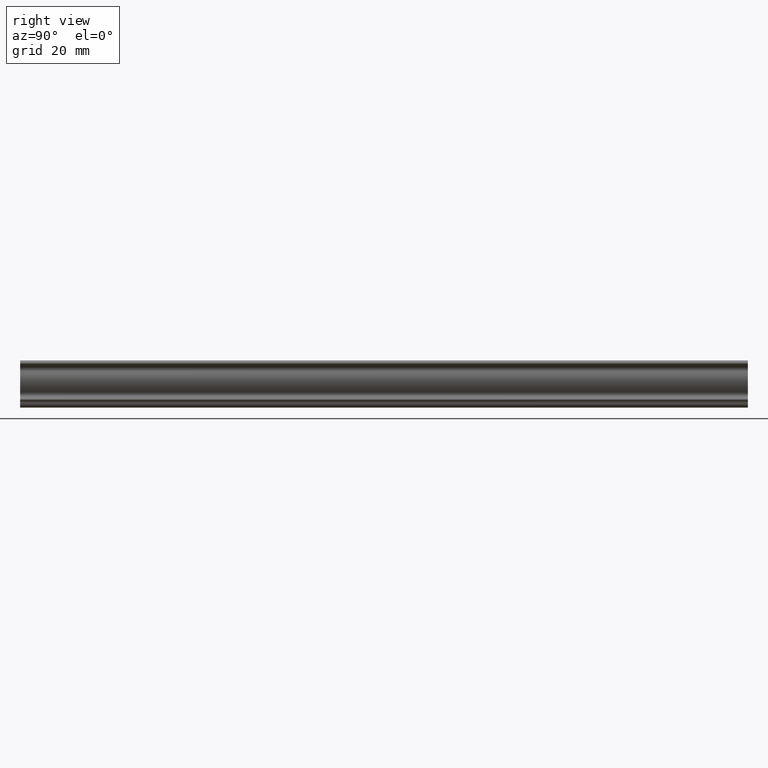
[diagram: clean part render]
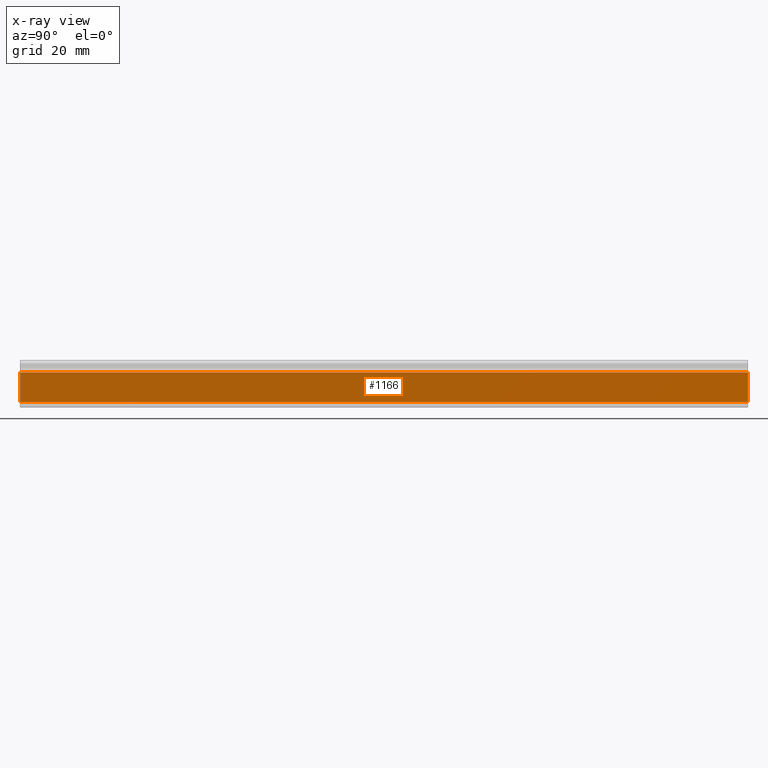
[diagram: x-ray — body ghosted, one internal face saturated and labeled with its STEP entity id]
A machine part, right view, then the same camera in x-ray: the body is ghosted and one INTERNAL B-rep face — a face not visible from any outside direction — is saturated and labeled: STEP entity #1166.
In plain terms, the highlighted face is a freeform B-spline surface patch.
Its self-contained STEP definition (entity closure, byte-faithful):
#1100=CARTESIAN_POINT('',(-3.400185990623070,0.0,-3.307314311838425));
#1101=VERTEX_POINT('',#1100);
#1116=CARTESIAN_POINT('',(-3.400185990623070,200.0,-3.307314311838425));
#1117=VERTEX_POINT('',#1116);
#1131=CARTESIAN_POINT('',(-3.400185990623070,200.0,-3.307314311838425));
#1132=CARTESIAN_POINT('',(-3.400185990623070,0.0,-3.307314311838425));
#1133=QUASI_UNIFORM_CURVE('',1,(#1131,#1132),.UNSPECIFIED.,.F.,.U.);
#1134=EDGE_CURVE('',#1117,#1101,#1133,.T.);
#1139=CARTESIAN_POINT('',(-3.425160984960332,-9.989999612361194,-2.898394259120184));
#1140=CARTESIAN_POINT('',(-2.875210978404415,-9.989999612361194,-11.902824155535820));
#1141=CARTESIAN_POINT('',(-3.425160984960332,209.990004976779200,-2.898394259120184));
#1142=CARTESIAN_POINT('',(-2.875210978404415,209.990004976779200,-11.902824155535820));
#1143=B_SPLINE_SURFACE_WITH_KNOTS('',1,1,((#1139,#1141),(#1140,#1142)),.UNSPECIFIED.,.F.,.F.,.U.,(2,2),(2,2),(0.0,9.021208498265329),(0.0,219.980004589140410),.UNSPECIFIED.);
#1144=CARTESIAN_POINT('',(-2.900185990623070,0.0,-11.493903810042321));
#1145=VERTEX_POINT('',#1144);
#1146=CARTESIAN_POINT('',(-2.900185990623070,0.0,-11.493903810042321));
#1147=CARTESIAN_POINT('',(-3.400185990623070,0.0,-3.307314311838425));
#1148=QUASI_UNIFORM_CURVE('',1,(#1146,#1147),.UNSPECIFIED.,.F.,.U.);
#1149=EDGE_CURVE('',#1145,#1101,#1148,.T.);
#1150=ORIENTED_EDGE('',*,*,#1149,.T.);
#1151=ORIENTED_EDGE('',*,*,#1134,.F.);
#1152=CARTESIAN_POINT('',(-2.900185990623070,200.0,-11.493903810042321));
#1153=VERTEX_POINT('',#1152);
#1154=CARTESIAN_POINT('',(-2.900185990623070,200.0,-11.493903810042321));
#1155=CARTESIAN_POINT('',(-3.400185990623070,200.0,-3.307314311838425));
#1156=QUASI_UNIFORM_CURVE('',1,(#1154,#1155),.UNSPECIFIED.,.F.,.U.);
#1157=EDGE_CURVE('',#1153,#1117,#1156,.T.);
#1158=ORIENTED_EDGE('',*,*,#1157,.F.);
#1159=CARTESIAN_POINT('',(-2.900185990623070,200.0,-11.493903810042321));
#1160=CARTESIAN_POINT('',(-2.900185990623070,0.0,-11.493903810042321));
#1161=QUASI_UNIFORM_CURVE('',1,(#1159,#1160),.UNSPECIFIED.,.F.,.U.);
#1162=EDGE_CURVE('',#1153,#1145,#1161,.T.);
#1163=ORIENTED_EDGE('',*,*,#1162,.T.);
#1164=EDGE_LOOP('',(#1150,#1151,#1158,#1163));
#1165=FACE_OUTER_BOUND('',#1164,.T.);
#1166=ADVANCED_FACE('',(#1165),#1143,.F.);